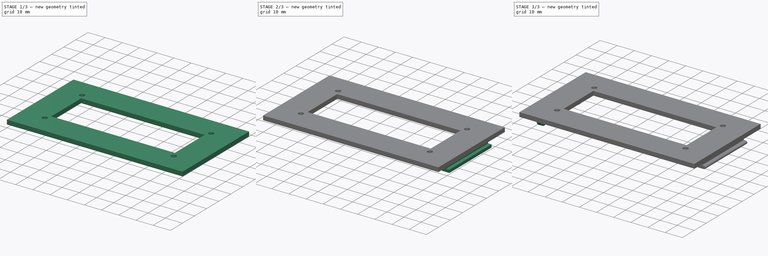
[diagram: build sequence overview — one tinted view per stage of 3, left to right]
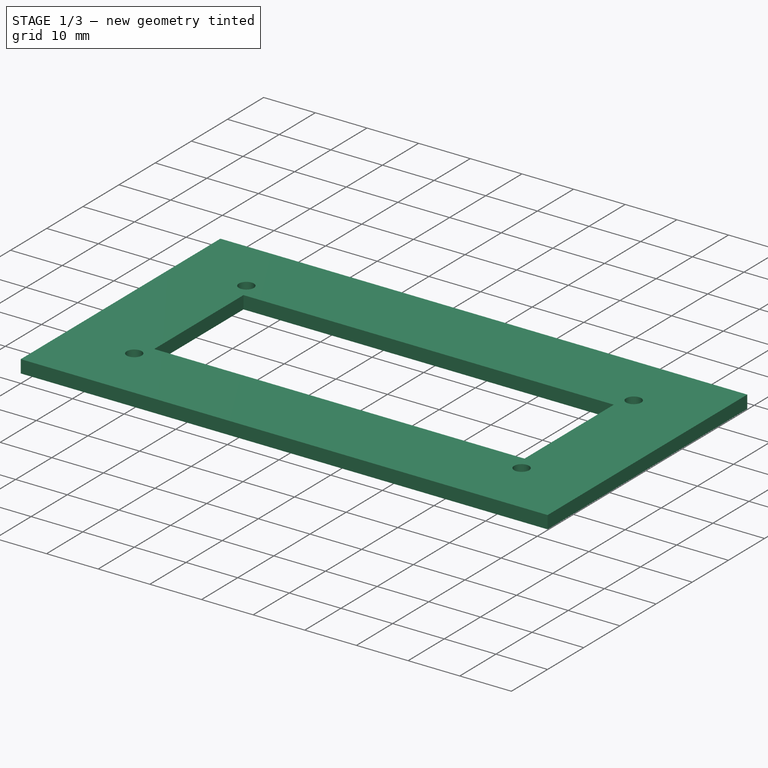
[diagram: stage 1 of 3 — iso view after this stage's code; geometry added in this stage tinted green]
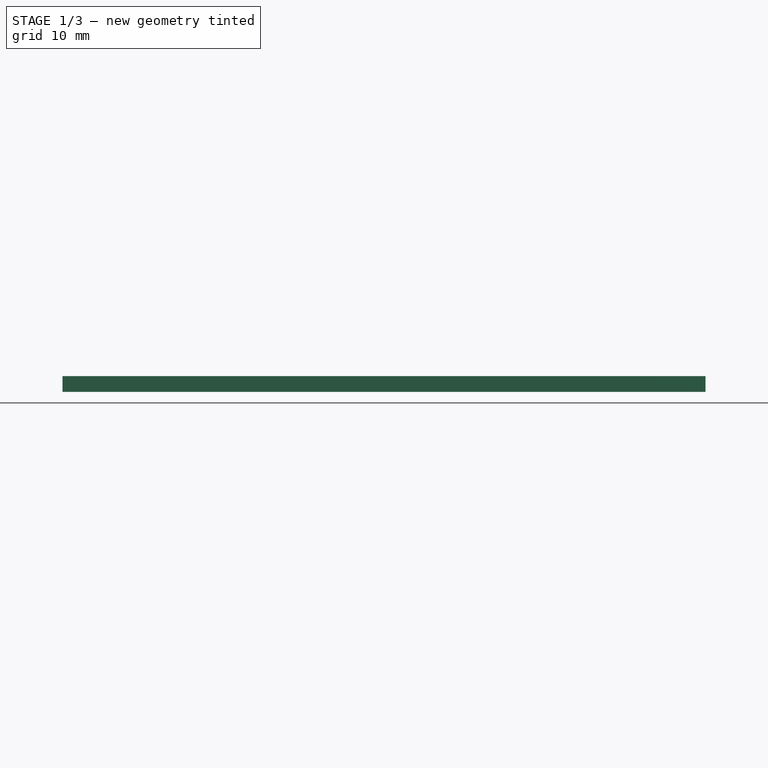
[diagram: stage 1 of 3 — front view after this stage's code; geometry added in this stage tinted green]
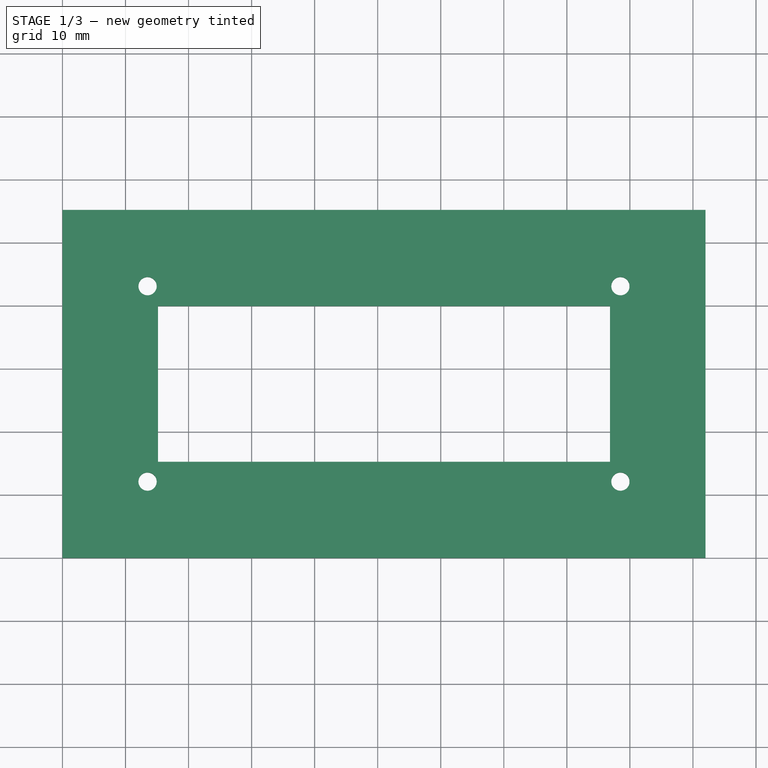
[diagram: stage 1 of 3 — top view after this stage's code; geometry added in this stage tinted green]
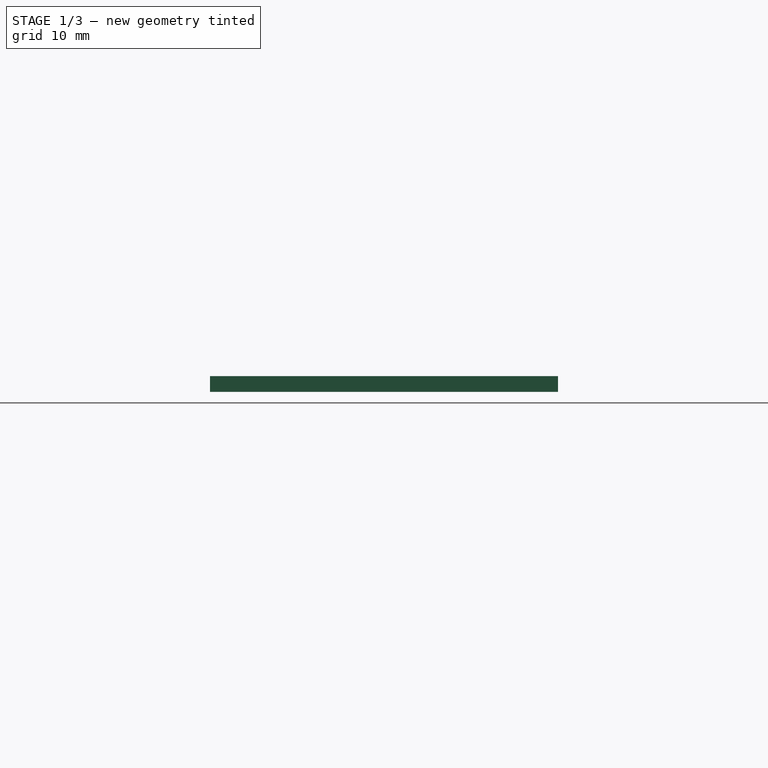
[diagram: stage 1 of 3 — right view after this stage's code; geometry added in this stage tinted green]
FCSTD DOCUMENT  (FreeCAD 0.18.4R)
Label: AirQProjectTop
License: All rights reserved
LicenseURL: http://en.wikipedia.org/wiki/All_rights_reserved
objects: Sketcher::SketchObject×6, PartDesign::Pad×4, PartDesign::Pocket×2, PartDesign::Fillet×2, PartDesign::Body×1
note: 21 computed .brp shape members not serialized (recipe doc carries the construction recipe); baked Part::Feature solids carry a one-line shape summary decoded from their .brp

FEATURE [Sketcher::SketchObject] Sketch
  MapMode = 5
  Support = -> [XY_Plane]
  sketch-geometry (4):
    g0: LineSegment StartX=0 StartY=0 StartZ=0 EndX=102 EndY=0 EndZ=0
    g1: LineSegment StartX=102 StartY=0 StartZ=0 EndX=102 EndY=55.2 EndZ=0
    g2: LineSegment StartX=102 StartY=55.2 StartZ=0 EndX=0 EndY=55.2 EndZ=0
    g3: LineSegment StartX=0 StartY=55.2 StartZ=0 EndX=0 EndY=0 EndZ=0
  constraints (11):
    c: Coincident(g0,g1)
    c: Coincident(g1,g2)
    c: Coincident(g2,g3)
    c: Coincident(g3,g0)
    c: Horizontal(g0)
    c: Horizontal(g2)
    c: Vertical(g1)
    c: Vertical(g3)
    c: Coincident(g0,g-1)
    c: DistanceY(g3,g3) = 55.2
    c: DistanceX(g2,g2) = 102
FEATURE [PartDesign::Pad] Pad
  Length = 2.5
  Length2 = 100
  Profile = -> Sketch
  Type = 0
FEATURE [Sketcher::SketchObject] Sketch001
  ExternalGeometry = -> [Pad]
  MapMode = 5
  Placement = pos=(0,0,2.5) rot=(0,0,1;0rad)
  Support = -> [Pad]
  sketch-geometry (4):
    g0: LineSegment StartX=15.15 StartY=15.25 StartZ=0 EndX=86.85 EndY=15.25 EndZ=0
    g1: LineSegment StartX=86.85 StartY=15.25 StartZ=0 EndX=86.85 EndY=39.95 EndZ=0
    g2: LineSegment StartX=86.85 StartY=39.95 StartZ=0 EndX=15.15 EndY=39.95 EndZ=0
    g3: LineSegment StartX=15.15 StartY=39.95 StartZ=0 EndX=15.15 EndY=15.25 EndZ=0
  constraints (13):
    c: Coincident(g0,g1)
    c: Coincident(g1,g2)
    c: Coincident(g2,g3)
    c: Coincident(g3,g0)
    c: Horizontal(g0)
    c: Horizontal(g2)
    c: Vertical(g1)
    c: Vertical(g3)
    c: DistanceX(g2,g2) = 71.7
    c: DistanceY(g1,g1) = 24.7
    c: DistanceX(g0,g-5) = 15.15
    c: DistanceY(g-5,g-5) = 55.2
    c: DistanceY(g-1,g0) = 15.25
FEATURE [PartDesign::Pocket] Pocket
  BaseFeature = -> Pad
  Length = 5
  Length2 = 100
  Profile = -> Sketch001
  Type = 2
FEATURE [Sketcher::SketchObject] Sketch002
  ExternalGeometry = -> [Pocket]
  MapMode = 5
  Placement = pos=(0,0,2.5) rot=(0,0,1;0rad)
  Support = -> [Pocket]
  sketch-geometry (4):
    g0: Circle CenterX=13.5 CenterY=43.1 CenterZ=0 NormalX=0 NormalY=0 NormalZ=1 AngleXU=0 Radius=1.45
    g1: Circle CenterX=13.5 CenterY=12.1 CenterZ=0 NormalX=0 NormalY=0 NormalZ=1 AngleXU=0 Radius=1.45
    g2: Circle CenterX=88.5 CenterY=43.1 CenterZ=0 NormalX=0 NormalY=0 NormalZ=1 AngleXU=0 Radius=1.45
    g3: Circle CenterX=88.5 CenterY=12.1 CenterZ=0 NormalX=0 NormalY=0 NormalZ=1 AngleXU=0 Radius=1.45
  constraints (14):
    c: Diameter(g0) = 2.9
    c: Equal(g0,g1) = 2.7
    c: DistanceX(g1,g0) = 0
    c: DistanceY(g1,g0) = 31
    c: Equal(g0,g2) = 2.7
    c: Equal(g2,g3) = 2.7
    c: DistanceX(g3,g2) = 0
    c: DistanceY(g3,g2) = 31
    c: DistanceY(g2,g0) = 0
    c: DistanceX(g0,g2) = 75
    c: DistanceX(g-4,g-6) = 71.7
    c: DistanceX(g-6,g2) = 1.65
    c: DistanceY(g-6,g-6) = 24.7
    c: DistanceY(g-6,g2) = 3.15
FEATURE [PartDesign::Pocket] Pocket001
  BaseFeature = -> Pocket
  Length = 5
  Length2 = 100
  Profile = -> Sketch002
  Type = 0
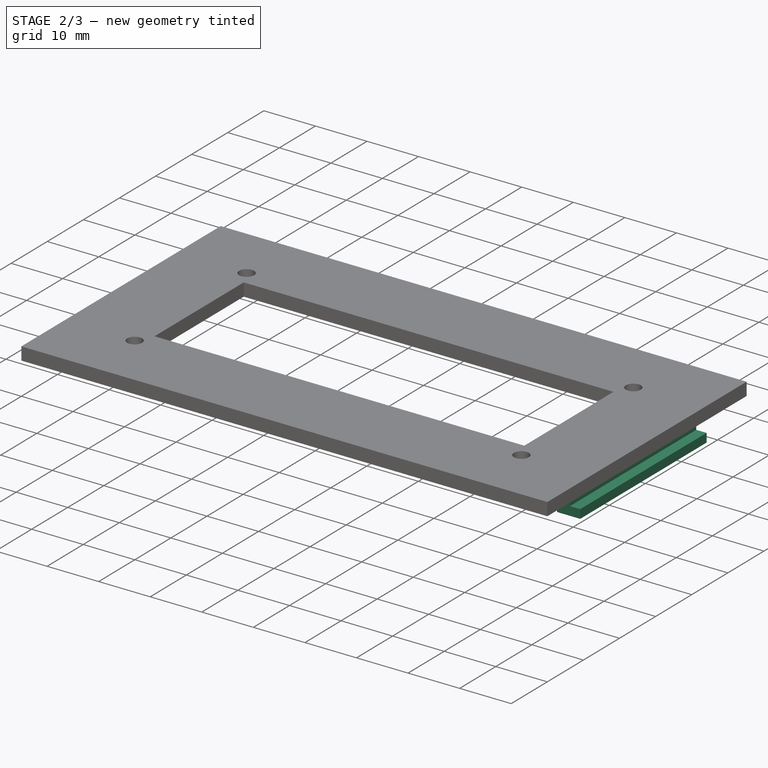
[diagram: stage 2 of 3 — iso view after this stage's code; geometry added in this stage tinted green]
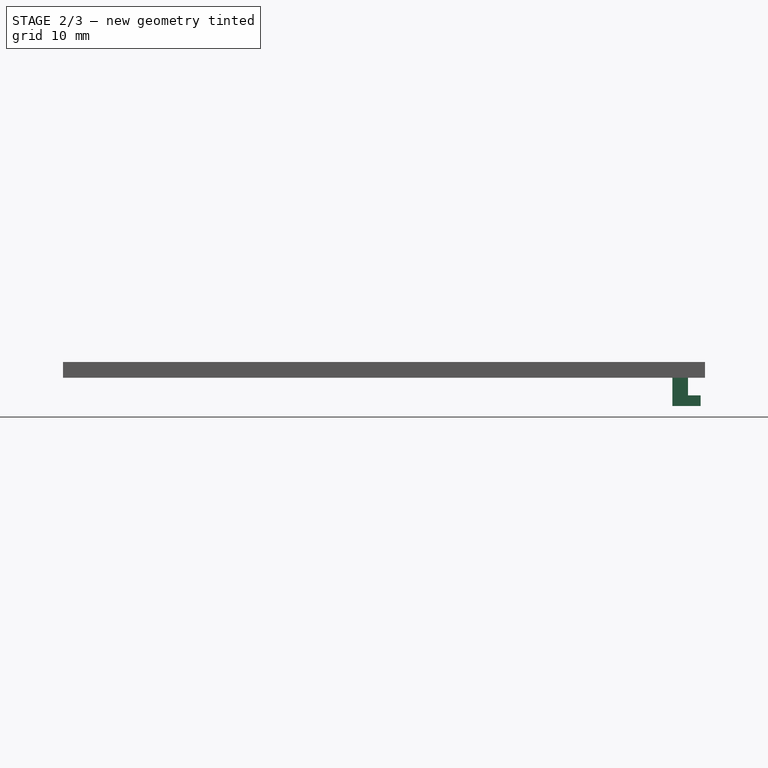
[diagram: stage 2 of 3 — front view after this stage's code; geometry added in this stage tinted green]
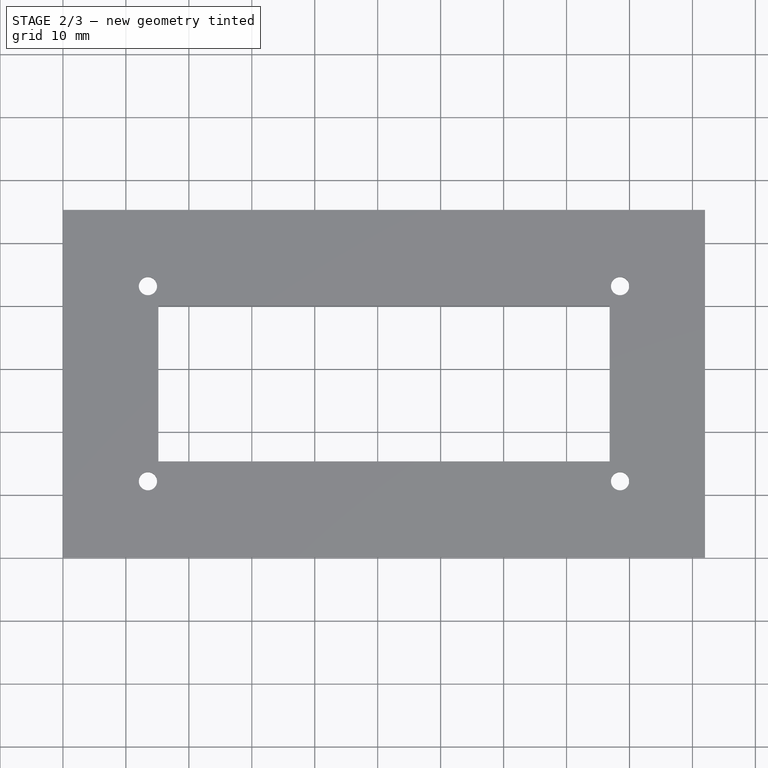
[diagram: stage 2 of 3 — top view after this stage's code; geometry added in this stage tinted green]
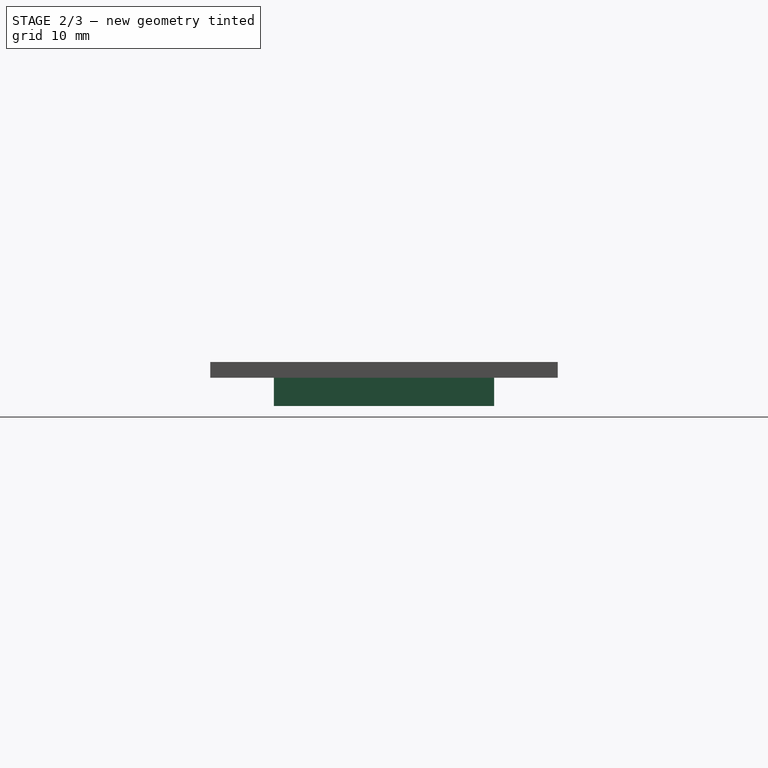
[diagram: stage 2 of 3 — right view after this stage's code; geometry added in this stage tinted green]
FEATURE [Sketcher::SketchObject] Sketch003
  ExternalGeometry = -> [Pocket001]
  MapMode = 5
  Placement = pos=(0,0,0) rot=(1,0,0;3.14159rad)
  Support = -> [Pocket001]
  sketch-geometry (4):
    g0: LineSegment StartX=96.8 StartY=-10.1 StartZ=0 EndX=99.3 EndY=-10.1 EndZ=0
    g1: LineSegment StartX=99.3 StartY=-10.1 StartZ=0 EndX=99.3 EndY=-45.1 EndZ=0
    g2: LineSegment StartX=99.3 StartY=-45.1 StartZ=0 EndX=96.8 EndY=-45.1 EndZ=0
    g3: LineSegment StartX=96.8 StartY=-45.1 StartZ=0 EndX=96.8 EndY=-10.1 EndZ=0
  constraints (13):
    c: Coincident(g0,g1)
    c: Coincident(g1,g2)
    c: Coincident(g2,g3)
    c: Coincident(g3,g0)
    c: Horizontal(g0)
    c: Horizontal(g2)
    c: Vertical(g1)
    c: Vertical(g3)
    c: DistanceY(g1,g1) = 35
    c: DistanceY(g-4,g-4) = 55.2
    c: DistanceY(g0,g-4) = 10.1
    c: DistanceX(g0,g-4) = 2.7
    c: DistanceX(g0,g0) = 2.5
FEATURE [PartDesign::Pad] Pad001
  BaseFeature = -> Pocket001
  Length = 4.5
  Length2 = 100
  Profile = -> Sketch003
  Type = 0
FEATURE [Sketcher::SketchObject] Sketch004
  ExternalGeometry = -> [Pad001]
  MapMode = 5
  Placement = pos=(99.3,0,0) rot=(0.57735,0.57735,0.57735;2.0944rad)
  Support = -> [Pad001]
  sketch-geometry (4):
    g0: LineSegment StartX=10.1 StartY=-2.8 StartZ=0 EndX=45.1 EndY=-2.8 EndZ=0
    g1: LineSegment StartX=45.1 StartY=-2.8 StartZ=0 EndX=45.1 EndY=-4.5 EndZ=0
    g2: LineSegment StartX=45.1 StartY=-4.5 StartZ=0 EndX=10.1 EndY=-4.5 EndZ=0
    g3: LineSegment StartX=10.1 StartY=-4.5 StartZ=0 EndX=10.1 EndY=-2.8 EndZ=0
  constraints (11):
    c: Coincident(g0,g1)
    c: Coincident(g1,g2)
    c: Coincident(g2,g3)
    c: Coincident(g3,g0)
    c: Horizontal(g0)
    c: Horizontal(g2)
    c: Vertical(g1)
    c: Vertical(g3)
    c: Coincident(g2,g-4)
    c: PointOnObject(g0,g-5)
    c: DistanceY(g3,g3) = 1.7
FEATURE [PartDesign::Pad] Pad002
  BaseFeature = -> Pad001
  Length = 2
  Length2 = 100
  Profile = -> Sketch004
  Type = 0
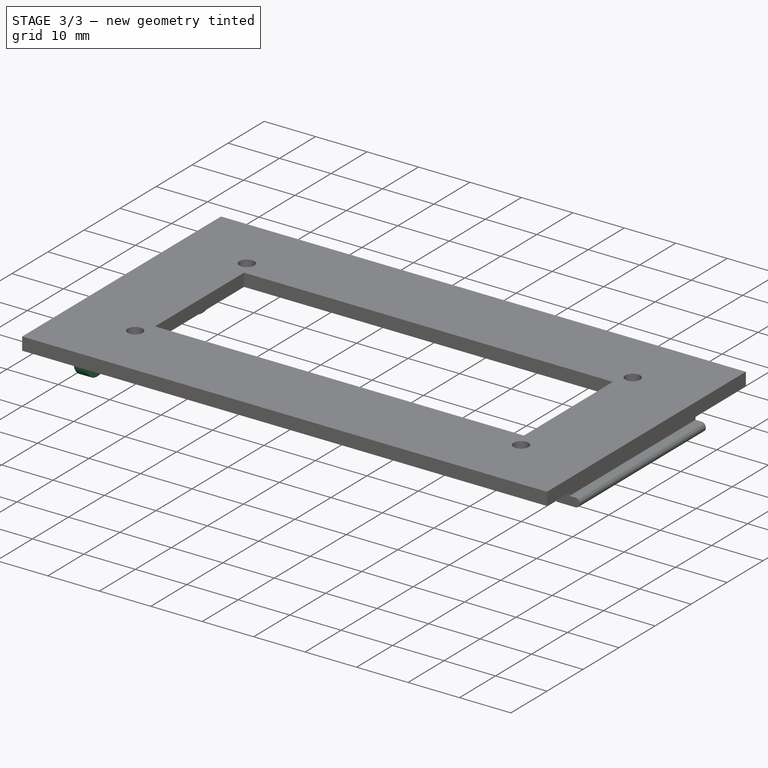
[diagram: stage 3 of 3 — iso view after this stage's code; geometry added in this stage tinted green]
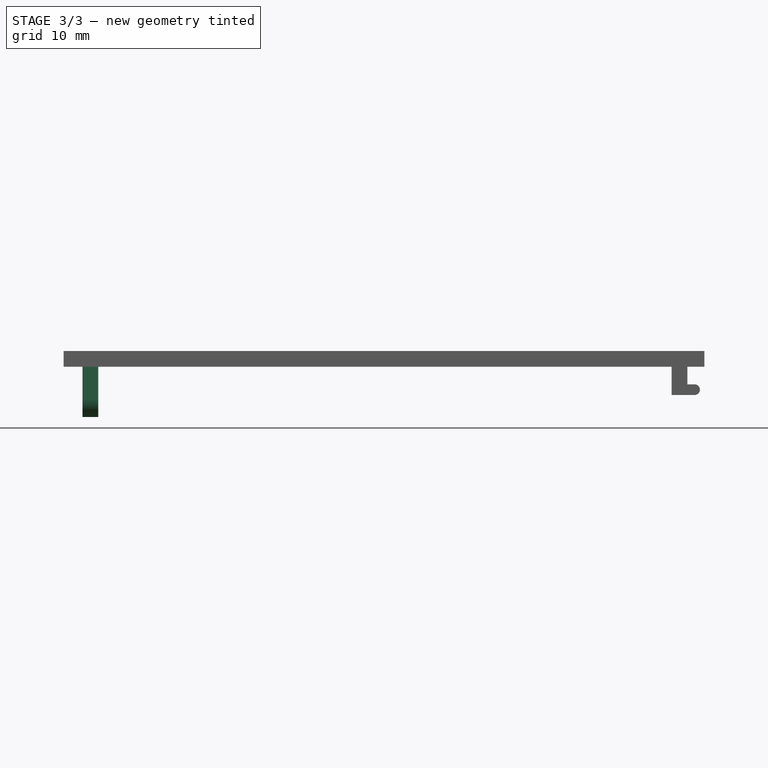
[diagram: stage 3 of 3 — front view after this stage's code; geometry added in this stage tinted green]
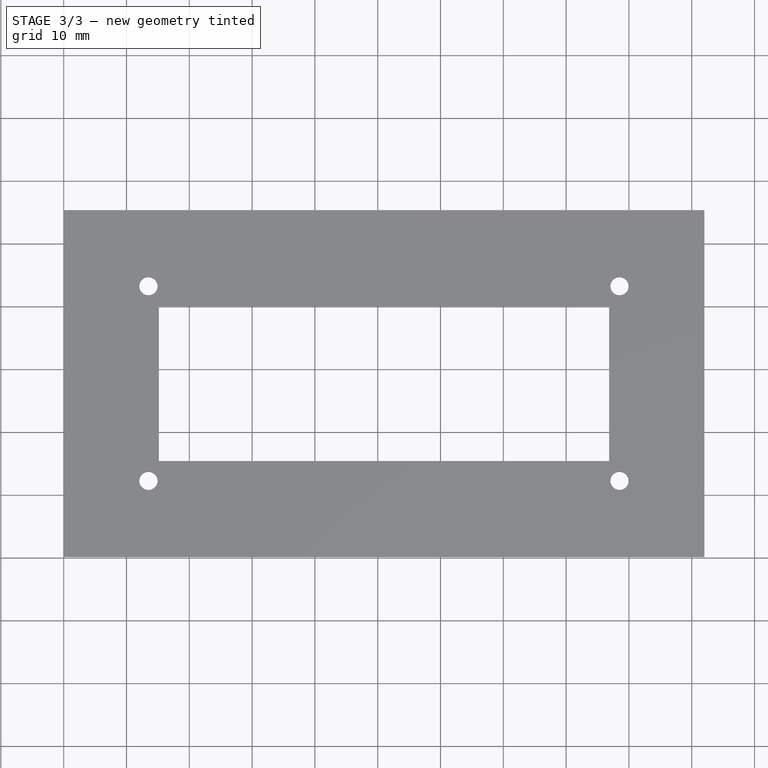
[diagram: stage 3 of 3 — top view after this stage's code; geometry added in this stage tinted green]
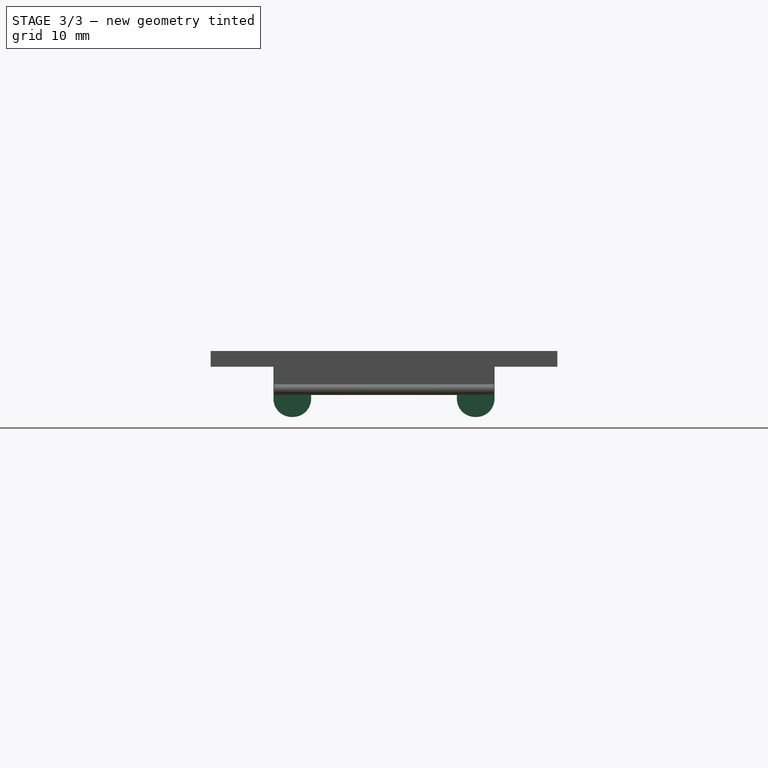
[diagram: stage 3 of 3 — right view after this stage's code; geometry added in this stage tinted green]
FEATURE [Sketcher::SketchObject] Sketch005
  MapMode = 5
  Placement = pos=(0,0,0) rot=(1,0,0;3.14159rad)
  sketch-geometry (8):
    g0: LineSegment StartX=3 StartY=-10 StartZ=0 EndX=5.5 EndY=-10 EndZ=0
    g1: LineSegment StartX=5.5 StartY=-10 StartZ=0 EndX=5.5 EndY=-16 EndZ=0
    g2: LineSegment StartX=5.5 StartY=-16 StartZ=0 EndX=3 EndY=-16 EndZ=0
    g3: LineSegment StartX=3 StartY=-16 StartZ=0 EndX=3 EndY=-10 EndZ=0
    g4: LineSegment StartX=3 StartY=-39.2 StartZ=0 EndX=5.5 EndY=-39.2 EndZ=0
    g5: LineSegment StartX=5.5 StartY=-39.2 StartZ=0 EndX=5.5 EndY=-45.2 EndZ=0
    g6: LineSegment StartX=5.5 StartY=-45.2 StartZ=0 EndX=3 EndY=-45.2 EndZ=0
    g7: LineSegment StartX=3 StartY=-45.2 StartZ=0 EndX=3 EndY=-39.2 EndZ=0
  constraints (23):
    c: Coincident(g0,g1)
    c: Coincident(g1,g2)
    c: Coincident(g2,g3)
    c: Coincident(g3,g0)
    c: Horizontal(g0)
    c: Horizontal(g2)
    c: Vertical(g1)
    c: Vertical(g3)
    c: DistanceX(g-1,g0) = 3
    c: DistanceX(g0,g0) = 2.5
    c: DistanceY(g1,g1) = 6
    c: DistanceY(g0,g-1) = 10
    c: Coincident(g4,g5)
    c: Coincident(g5,g6)
    c: Coincident(g6,g7)
    c: Coincident(g7,g4)
    c: Horizontal(g4)
    c: Horizontal(g6)
    c: Vertical(g5)
    c: Vertical(g7)
    c: Equal(g0,g4) = 2.5
    c: Equal(g1,g5) = 6
    c: DistanceX(g2,g4) = 0
FEATURE [PartDesign::Pad] Pad003
  BaseFeature = -> Pad002
  Length = 8
  Length2 = 100
  Profile = -> Sketch005
  Type = 0
FEATURE [PartDesign::Fillet] Fillet
  Base = -> Pad003 [Edge54,Edge50,Edge58,Edge62]
  BaseFeature = -> Pad003
  Radius = 2.9
FEATURE [PartDesign::Fillet] Fillet001
  Base = -> Fillet [Edge92,Edge95]
  BaseFeature = -> Fillet
  Radius = 0.84
FEATURE [PartDesign::Body] Body
  Group = -> [Sketch,Pad,Sketch001,Pocket,Sketch002,Pocket001,Sketch003,Pad001,Sketch004,Pad002,Sketch005,Pad003,Fillet,Fillet001]
  Origin = -> Origin
  Tip = -> Fillet001
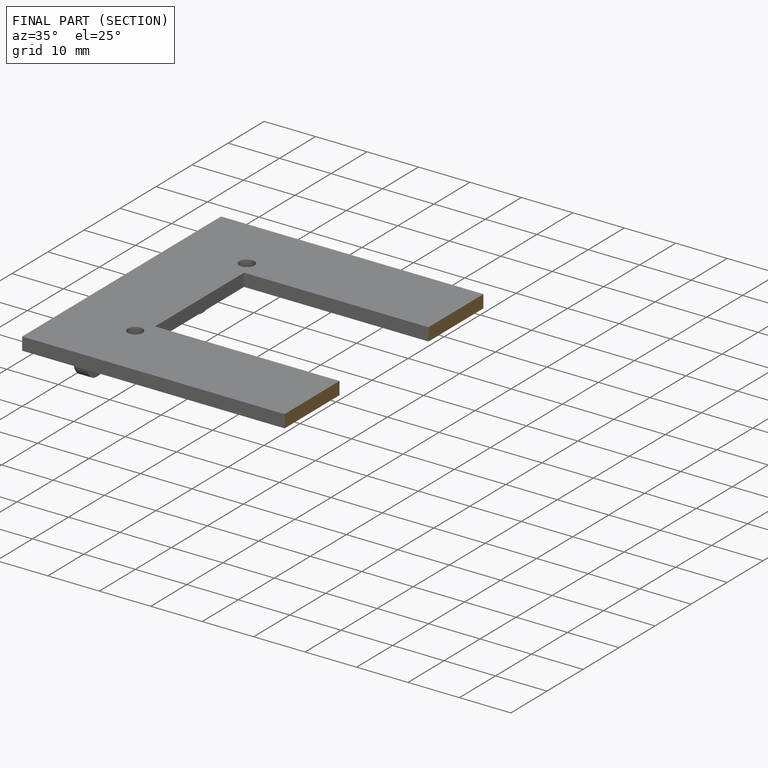
[diagram: finished part — half-section view (interior)]
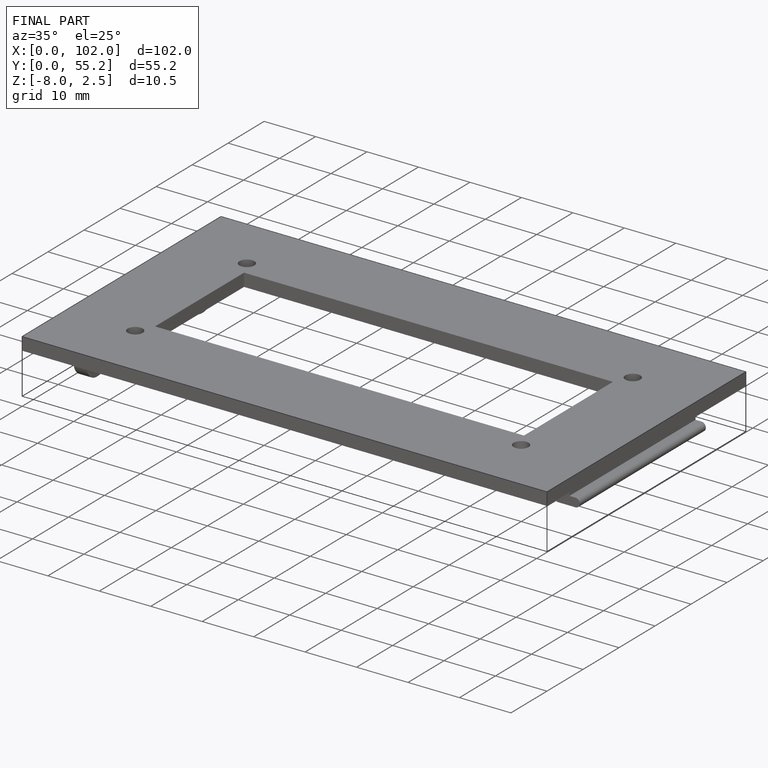
[diagram: finished part — iso view with bounding-box wireframe]
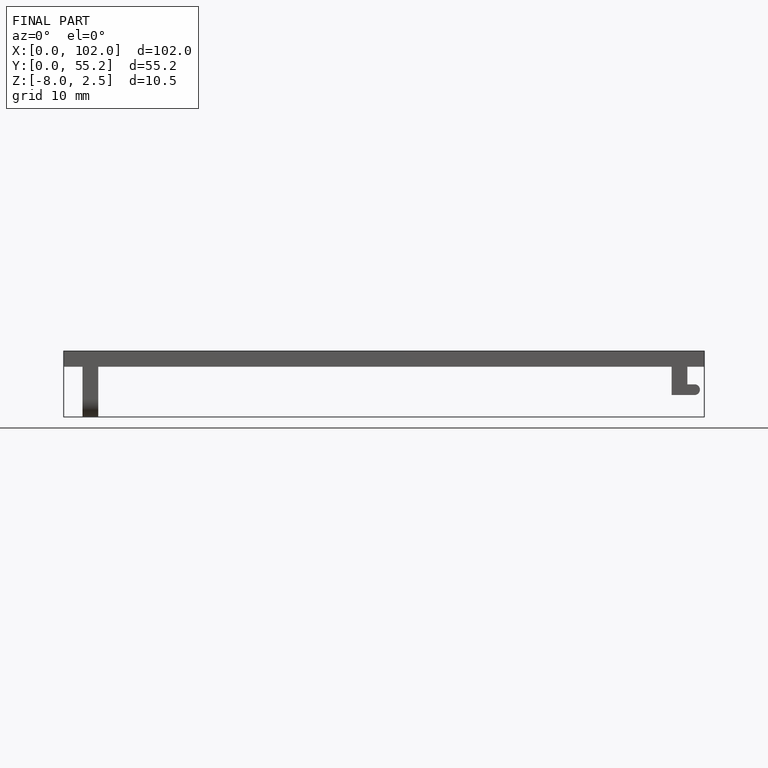
[diagram: finished part — front view with bounding-box wireframe]
